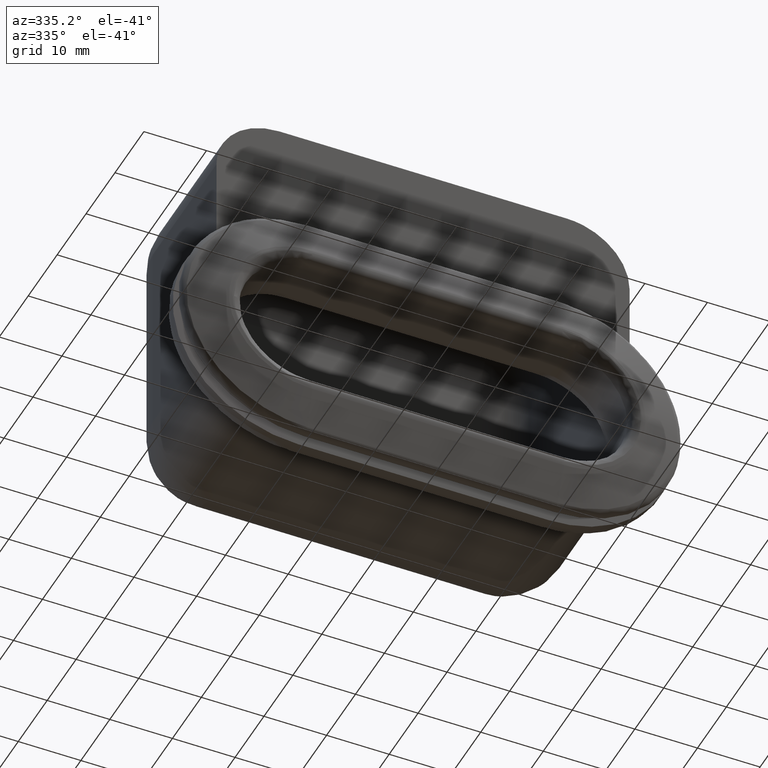
[diagram: clean part render]
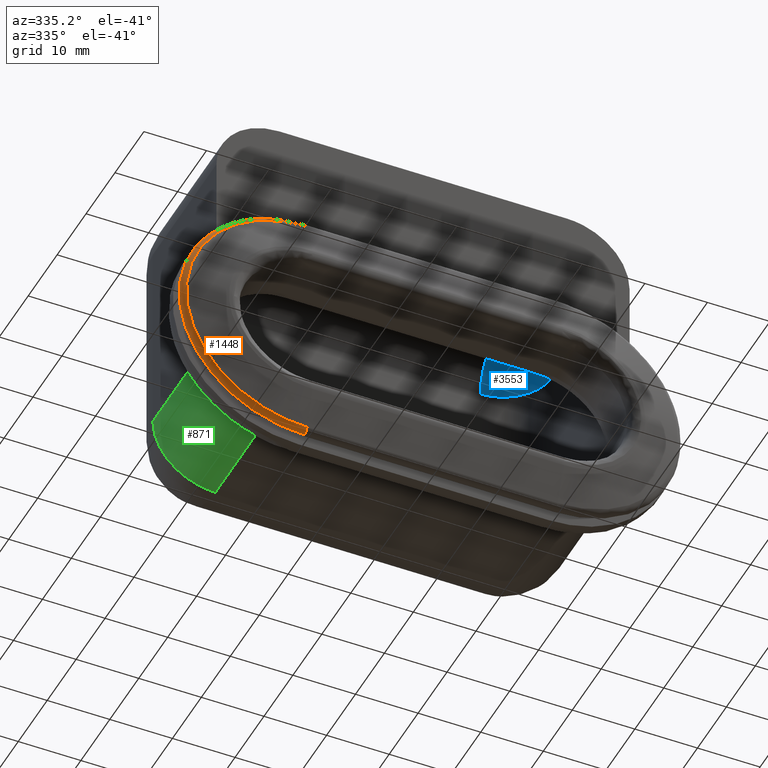
[diagram: same view with three faces highlighted in distinct colors, each labeled with its STEP entity id]
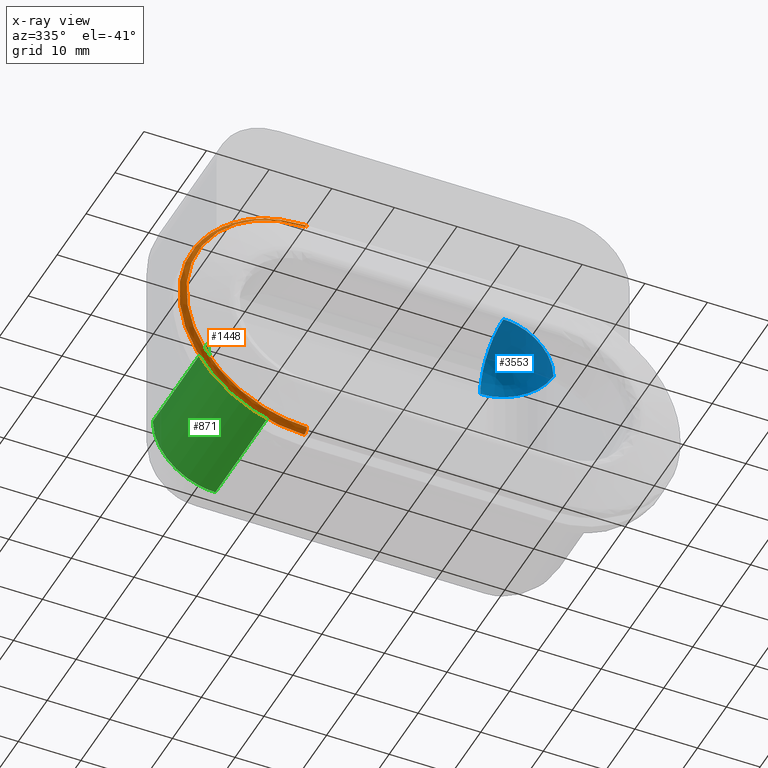
[diagram: x-ray of the same camera — body ghosted, the three highlighted faces saturated]
A machine part, auxiliary view with three faces highlighted in distinct colors.
The next image is the same camera in x-ray (body ghosted, the three faces saturated) — at least one of them is partly hidden behind the body in this view.
Their STEP definitions:

[orange] entity #1448 — the highlighted face is a freeform B-spline surface patch.
#1359=CARTESIAN_POINT('',(-17.175471978776041,2.813918930099752,19.797749780662457));
#1360=CARTESIAN_POINT('',(-40.143599900711131,2.813918930099753,23.074592938561551));
#1361=CARTESIAN_POINT('',(-39.997826546147969,2.813918930099751,-0.125651703444775));
#1362=CARTESIAN_POINT('',(-39.853788966098136,2.813918930099752,-23.049642886975530));
#1363=CARTESIAN_POINT('',(-17.161449692275731,2.813918930099752,-19.795744165626054));
#1364=CARTESIAN_POINT('',(-17.168295890231981,1.963199770038633,19.848048593183300));
#1365=CARTESIAN_POINT('',(-40.194777391391931,1.963199770038633,23.133217006300058));
#1366=CARTESIAN_POINT('',(-40.048633680262355,1.963199770038634,-0.125970938284316));
#1367=CARTESIAN_POINT('',(-39.904230153611771,1.963199770038633,-23.108203565794533));
#1368=CARTESIAN_POINT('',(-17.154237978250606,1.963199770038633,-19.846037882615548));
#1369=CARTESIAN_POINT('',(-17.285793125454692,1.778157735609213,19.024484144404610));
#1370=CARTESIAN_POINT('',(-39.356825960929285,1.778157735609214,22.173339513919558));
#1371=CARTESIAN_POINT('',(-39.216746259787094,1.778157735609213,-0.120743966682388));
#1372=CARTESIAN_POINT('',(-39.078334536827889,1.778157735609214,-22.149363967907536));
#1373=CARTESIAN_POINT('',(-17.272318525050672,1.778157735609213,-19.022556865199537));
#1381=(BOUNDED_SURFACE()B_SPLINE_SURFACE(2,2,((#1359,#1364,#1369),(#1360,#1365,#1370),(#1361,#1366,#1371),(#1362,#1367,#1372),(#1363,#1368,#1373)),.UNSPECIFIED.,.F.,.F.,.U.)B_SPLINE_SURFACE_WITH_KNOTS((3,2,3),(3,3),(0.0,36.657065232759741,73.028923794129810),(0.0,1.473249745172061),.UNSPECIFIED.)GEOMETRIC_REPRESENTATION_ITEM()RATIONAL_B_SPLINE_SURFACE(((0.912566638825342,0.695898716207276,0.916104253006778),(0.597825629014286,0.455885707461713,0.600143132562245),(0.918751019451357,0.700614758143370,0.922312607720465),(0.600322557281451,0.457789797641712,0.602649740307568),(0.907707496052616,0.692193264930030,0.911226273502957)))REPRESENTATION_ITEM('')SURFACE());
#1382=CARTESIAN_POINT('',(-20.0,2.754301412754455,-20.0));
#1383=VERTEX_POINT('',#1382);
#1384=CARTESIAN_POINT('',(-20.0,1.792777465113545,-19.274721127897401));
#1385=VERTEX_POINT('',#1384);
#1386=CARTESIAN_POINT('',(-20.0,2.754301412754455,-20.0));
#1387=CARTESIAN_POINT('',(-20.0,2.000000000000096,-20.0));
#1388=CARTESIAN_POINT('',(-20.0,1.792777465113545,-19.274721127897401));
#1396=(BOUNDED_CURVE()B_SPLINE_CURVE(2,(#1386,#1387,#1388),.UNSPECIFIED.,.F.,.U.)CURVE()GEOMETRIC_REPRESENTATION_ITEM()QUASI_UNIFORM_CURVE()RATIONAL_B_SPLINE_CURVE((1.0,0.798348648116028,1.0))REPRESENTATION_ITEM(''));
#1397=EDGE_CURVE('',#1383,#1385,#1396,.T.);
#1398=ORIENTED_EDGE('',*,*,#1397,.T.);
#1399=CARTESIAN_POINT('',(-20.0,1.792777465113545,19.274721127897401));
#1400=VERTEX_POINT('',#1399);
#1401=CARTESIAN_POINT('',(-20.0,1.792777465113535,19.274721127897401));
#1402=CARTESIAN_POINT('',(-39.274721127897394,1.792777465113535,19.274721127897411));
#1403=CARTESIAN_POINT('',(-39.274721127897401,1.792777465113535,0.0));
#1404=CARTESIAN_POINT('',(-39.274721127897394,1.792777465113535,-19.274721127897411));
#1405=CARTESIAN_POINT('',(-20.0,1.792777465113535,-19.274721127897401));
#1413=(BOUNDED_CURVE()B_SPLINE_CURVE(2,(#1401,#1402,#1403,#1404,#1405),.UNSPECIFIED.,.F.,.U.)B_SPLINE_CURVE_WITH_KNOTS((3,2,3),(0.0,0.500000000000000,1.0),.UNSPECIFIED.)CURVE()GEOMETRIC_REPRESENTATION_ITEM()RATIONAL_B_SPLINE_CURVE((1.0,0.707106781186548,1.0,0.707106781186548,1.0))REPRESENTATION_ITEM(''));
#1414=EDGE_CURVE('',#1400,#1385,#1413,.T.);
#1415=ORIENTED_EDGE('',*,*,#1414,.F.);
#1416=CARTESIAN_POINT('',(-20.0,2.754301412754455,20.0));
#1417=VERTEX_POINT('',#1416);
#1418=CARTESIAN_POINT('',(-20.0,1.792777465113553,19.274721127897401));
#1419=CARTESIAN_POINT('',(-20.000000000000004,2.000000000000029,20.000000000000004));
#1420=CARTESIAN_POINT('',(-20.0,2.754301412754455,20.0));
#1428=(BOUNDED_CURVE()B_SPLINE_CURVE(2,(#1418,#1419,#1420),.UNSPECIFIED.,.F.,.U.)CURVE()GEOMETRIC_REPRESENTATION_ITEM()QUASI_UNIFORM_CURVE()RATIONAL_B_SPLINE_CURVE((1.0,0.798348648116035,1.0))REPRESENTATION_ITEM(''));
#1429=EDGE_CURVE('',#1400,#1417,#1428,.T.);
#1430=ORIENTED_EDGE('',*,*,#1429,.T.);
#1431=CARTESIAN_POINT('',(-20.0,2.754301412754455,-20.0));
#1432=CARTESIAN_POINT('',(-39.999999999999993,2.754301412754344,-19.999999999999996));
#1433=CARTESIAN_POINT('',(-40.0,2.754301412754345,0.0));
#1434=CARTESIAN_POINT('',(-39.999999999999993,2.754301412754344,19.999999999999996));
#1435=CARTESIAN_POINT('',(-20.0,2.754301412754455,20.0));
#1443=(BOUNDED_CURVE()B_SPLINE_CURVE(2,(#1431,#1432,#1433,#1434,#1435),.UNSPECIFIED.,.F.,.U.)B_SPLINE_CURVE_WITH_KNOTS((3,2,3),(0.0,0.500000000000000,1.0),.UNSPECIFIED.)CURVE()GEOMETRIC_REPRESENTATION_ITEM()RATIONAL_B_SPLINE_CURVE((1.0,0.707106781186548,1.0,0.707106781186548,1.0))REPRESENTATION_ITEM(''));
#1444=EDGE_CURVE('',#1383,#1417,#1443,.T.);
#1445=ORIENTED_EDGE('',*,*,#1444,.F.);
#1446=EDGE_LOOP('',(#1398,#1415,#1430,#1445));
#1447=FACE_OUTER_BOUND('',#1446,.T.);
#1448=ADVANCED_FACE('',(#1447),#1381,.T.);

[blue] entity #3553 — the highlighted face is a freeform B-spline surface patch.
#3422=CARTESIAN_POINT('',(23.0,35.0,29.0));
#3423=VERTEX_POINT('',#3422);
#3430=CARTESIAN_POINT('',(31.0,27.0,29.0));
#3431=VERTEX_POINT('',#3430);
#3437=CARTESIAN_POINT('',(31.0,27.0,29.0));
#3438=CARTESIAN_POINT('',(31.000000000000007,34.999999999999993,29.0));
#3439=CARTESIAN_POINT('',(23.0,35.0,29.0));
#3447=(BOUNDED_CURVE()B_SPLINE_CURVE(2,(#3437,#3438,#3439),.UNSPECIFIED.,.F.,.U.)CURVE()GEOMETRIC_REPRESENTATION_ITEM()QUASI_UNIFORM_CURVE()RATIONAL_B_SPLINE_CURVE((1.0,0.707106781186548,1.0))REPRESENTATION_ITEM(''));
#3448=EDGE_CURVE('',#3431,#3423,#3447,.T.);
#3498=CARTESIAN_POINT('',(21.566714396121604,26.822878577343289,36.868565331707615));
#3499=CARTESIAN_POINT('',(23.346322243021408,26.461995379149208,37.184603396742517));
#3500=CARTESIAN_POINT('',(28.131069068092035,24.206445097228315,35.589688071867201));
#3501=CARTESIAN_POINT('',(28.586175903741502,22.401550270355582,32.413048323184285));
#3502=CARTESIAN_POINT('',(22.377401748518022,31.032896900528186,37.111002277431659));
#3503=CARTESIAN_POINT('',(24.851151378647231,30.952063855253481,37.559784529293658));
#3504=CARTESIAN_POINT('',(31.292523689142691,27.915573177257990,35.412660807426711));
#3505=CARTESIAN_POINT('',(30.984541525069623,24.630240906632622,31.490362767581619));
#3506=CARTESIAN_POINT('',(22.377401748518022,35.122914752694761,31.326845102669420));
#3507=CARTESIAN_POINT('',(24.851151378647231,35.435536737766768,31.219198062781359));
#3508=CARTESIAN_POINT('',(31.292523689142691,32.399046059771280,29.072074340914408));
#3509=CARTESIAN_POINT('',(30.984541525069623,27.870048483304455,26.908584174725668));
#3510=CARTESIAN_POINT('',(21.980100796552588,34.923202490064348,28.572603326820051));
#3511=CARTESIAN_POINT('',(24.105079650611678,35.179200112361187,28.247511320064444));
#3512=CARTESIAN_POINT('',(29.725121878270450,32.529887976433088,26.374164243815109));
#3513=CARTESIAN_POINT('',(29.839808081481078,28.400661598167066,25.094212947954496));
#3521=(BOUNDED_SURFACE()B_SPLINE_SURFACE(2,2,((#3498,#3502,#3506,#3510),(#3499,#3503,#3507,#3511),(#3500,#3504,#3508,#3512),(#3501,#3505,#3509,#3513)),.UNSPECIFIED.,.F.,.F.,.U.)B_SPLINE_SURFACE_WITH_KNOTS((3,1,3),(3,1,3),(0.0,4.679066925260734,14.025942446444111),(0.0,8.876811452896217,14.643989818580840),.UNSPECIFIED.)GEOMETRIC_REPRESENTATION_ITEM()RATIONAL_B_SPLINE_SURFACE(((1.442429395790684,1.096198854031478,1.096198854031478,1.242341898792701),(1.346230541759206,1.0,1.0,1.146143044761223),(1.346230541759206,1.0,1.0,1.146143044761223),(1.730100656390838,1.383870114631632,1.383870114631632,1.530013159392855)))REPRESENTATION_ITEM('')SURFACE());
#3522=CARTESIAN_POINT('',(23.0,27.0,37.0));
#3523=VERTEX_POINT('',#3522);
#3524=CARTESIAN_POINT('',(31.0,27.0,29.0));
#3525=CARTESIAN_POINT('',(31.000000000000007,27.000000000000011,37.0));
#3526=CARTESIAN_POINT('',(23.0,27.0,37.000000000000007));
#3534=(BOUNDED_CURVE()B_SPLINE_CURVE(2,(#3524,#3525,#3526),.UNSPECIFIED.,.F.,.U.)CURVE()GEOMETRIC_REPRESENTATION_ITEM()QUASI_UNIFORM_CURVE()RATIONAL_B_SPLINE_CURVE((1.0,0.707106781186548,1.0))REPRESENTATION_ITEM(''));
#3535=EDGE_CURVE('',#3431,#3523,#3534,.T.);
#3536=ORIENTED_EDGE('',*,*,#3535,.T.);
#3537=CARTESIAN_POINT('',(23.0,27.0,37.000000000000007));
#3538=CARTESIAN_POINT('',(22.999999999999993,34.999999999999993,37.0));
#3539=CARTESIAN_POINT('',(23.0,35.0,29.0));
#3547=(BOUNDED_CURVE()B_SPLINE_CURVE(2,(#3537,#3538,#3539),.UNSPECIFIED.,.F.,.U.)CURVE()GEOMETRIC_REPRESENTATION_ITEM()QUASI_UNIFORM_CURVE()RATIONAL_B_SPLINE_CURVE((1.0,0.707106781186548,1.0))REPRESENTATION_ITEM(''));
#3548=EDGE_CURVE('',#3523,#3423,#3547,.T.);
#3549=ORIENTED_EDGE('',*,*,#3548,.T.);
#3550=ORIENTED_EDGE('',*,*,#3448,.F.);
#3551=EDGE_LOOP('',(#3536,#3549,#3550));
#3552=FACE_OUTER_BOUND('',#3551,.T.);
#3553=ADVANCED_FACE('',(#3552),#3521,.F.);

[green] entity #871 — the highlighted face is a freeform B-spline surface patch.
#266=CARTESIAN_POINT('',(-33.0,27.0,-3.000000000000100));
#267=VERTEX_POINT('',#266);
#273=CARTESIAN_POINT('',(-33.0,8.0,-3.000000000000100));
#274=VERTEX_POINT('',#273);
#275=CARTESIAN_POINT('',(-33.0,27.0,-3.000000000000100));
#276=CARTESIAN_POINT('',(-33.0,8.0,-3.000000000000100));
#277=QUASI_UNIFORM_CURVE('',1,(#275,#276),.UNSPECIFIED.,.F.,.U.);
#278=EDGE_CURVE('',#267,#274,#277,.T.);
#819=CARTESIAN_POINT('',(-32.996573249755571,7.525000000000000,-2.738230516921366));
#820=CARTESIAN_POINT('',(-32.996573249755571,27.486875000000001,-2.738230516921366));
#821=CARTESIAN_POINT('',(-33.284922601662629,7.525000000000000,-13.749848005547300));
#822=CARTESIAN_POINT('',(-33.284922601662629,27.486874999999998,-13.749848005547300));
#823=CARTESIAN_POINT('',(-22.296799243740164,7.525000000000000,-12.975244793808205));
#824=CARTESIAN_POINT('',(-22.296799243740164,27.486875000000001,-12.975244793808205));
#832=(BOUNDED_SURFACE()B_SPLINE_SURFACE(1,2,((#819,#821,#823),(#820,#822,#824)),.UNSPECIFIED.,.F.,.F.,.U.)B_SPLINE_SURFACE_WITH_KNOTS((2,2),(3,3),(0.0,19.961875000000010),(0.0,17.711423440883639),.UNSPECIFIED.)GEOMETRIC_REPRESENTATION_ITEM()RATIONAL_B_SPLINE_SURFACE(((1.0,0.670944223154768,0.996392648609106),(1.0,0.670944223154768,0.996392648609106)))REPRESENTATION_ITEM('')SURFACE());
#833=CARTESIAN_POINT('',(-23.0,27.0,-13.0));
#834=VERTEX_POINT('',#833);
#835=CARTESIAN_POINT('',(-33.0,27.0,-3.000000000000100));
#836=CARTESIAN_POINT('',(-33.0,27.000000000000011,-13.000000000000099));
#837=CARTESIAN_POINT('',(-23.0,27.0,-13.0));
#845=(BOUNDED_CURVE()B_SPLINE_CURVE(2,(#835,#836,#837),.UNSPECIFIED.,.F.,.U.)CURVE()GEOMETRIC_REPRESENTATION_ITEM()QUASI_UNIFORM_CURVE()RATIONAL_B_SPLINE_CURVE((1.0,0.707106781186548,1.0))REPRESENTATION_ITEM(''));
#846=EDGE_CURVE('',#267,#834,#845,.T.);
#847=ORIENTED_EDGE('',*,*,#846,.T.);
#848=CARTESIAN_POINT('',(-23.0,8.0,-13.0));
#849=VERTEX_POINT('',#848);
#850=CARTESIAN_POINT('',(-23.0,8.0,-13.0));
#851=CARTESIAN_POINT('',(-23.0,27.0,-13.0));
#852=QUASI_UNIFORM_CURVE('',1,(#850,#851),.UNSPECIFIED.,.F.,.U.);
#853=EDGE_CURVE('',#849,#834,#852,.T.);
#854=ORIENTED_EDGE('',*,*,#853,.F.);
#855=CARTESIAN_POINT('',(-33.0,8.0,-3.000000000000100));
#856=CARTESIAN_POINT('',(-33.0,8.0,-13.000000000000099));
#857=CARTESIAN_POINT('',(-23.0,8.0,-13.0));
#865=(BOUNDED_CURVE()B_SPLINE_CURVE(2,(#855,#856,#857),.UNSPECIFIED.,.F.,.U.)CURVE()GEOMETRIC_REPRESENTATION_ITEM()QUASI_UNIFORM_CURVE()RATIONAL_B_SPLINE_CURVE((1.0,0.707106781186548,1.0))REPRESENTATION_ITEM(''));
#866=EDGE_CURVE('',#274,#849,#865,.T.);
#867=ORIENTED_EDGE('',*,*,#866,.F.);
#868=ORIENTED_EDGE('',*,*,#278,.F.);
#869=EDGE_LOOP('',(#847,#854,#867,#868));
#870=FACE_OUTER_BOUND('',#869,.T.);
#871=ADVANCED_FACE('',(#870),#832,.T.);